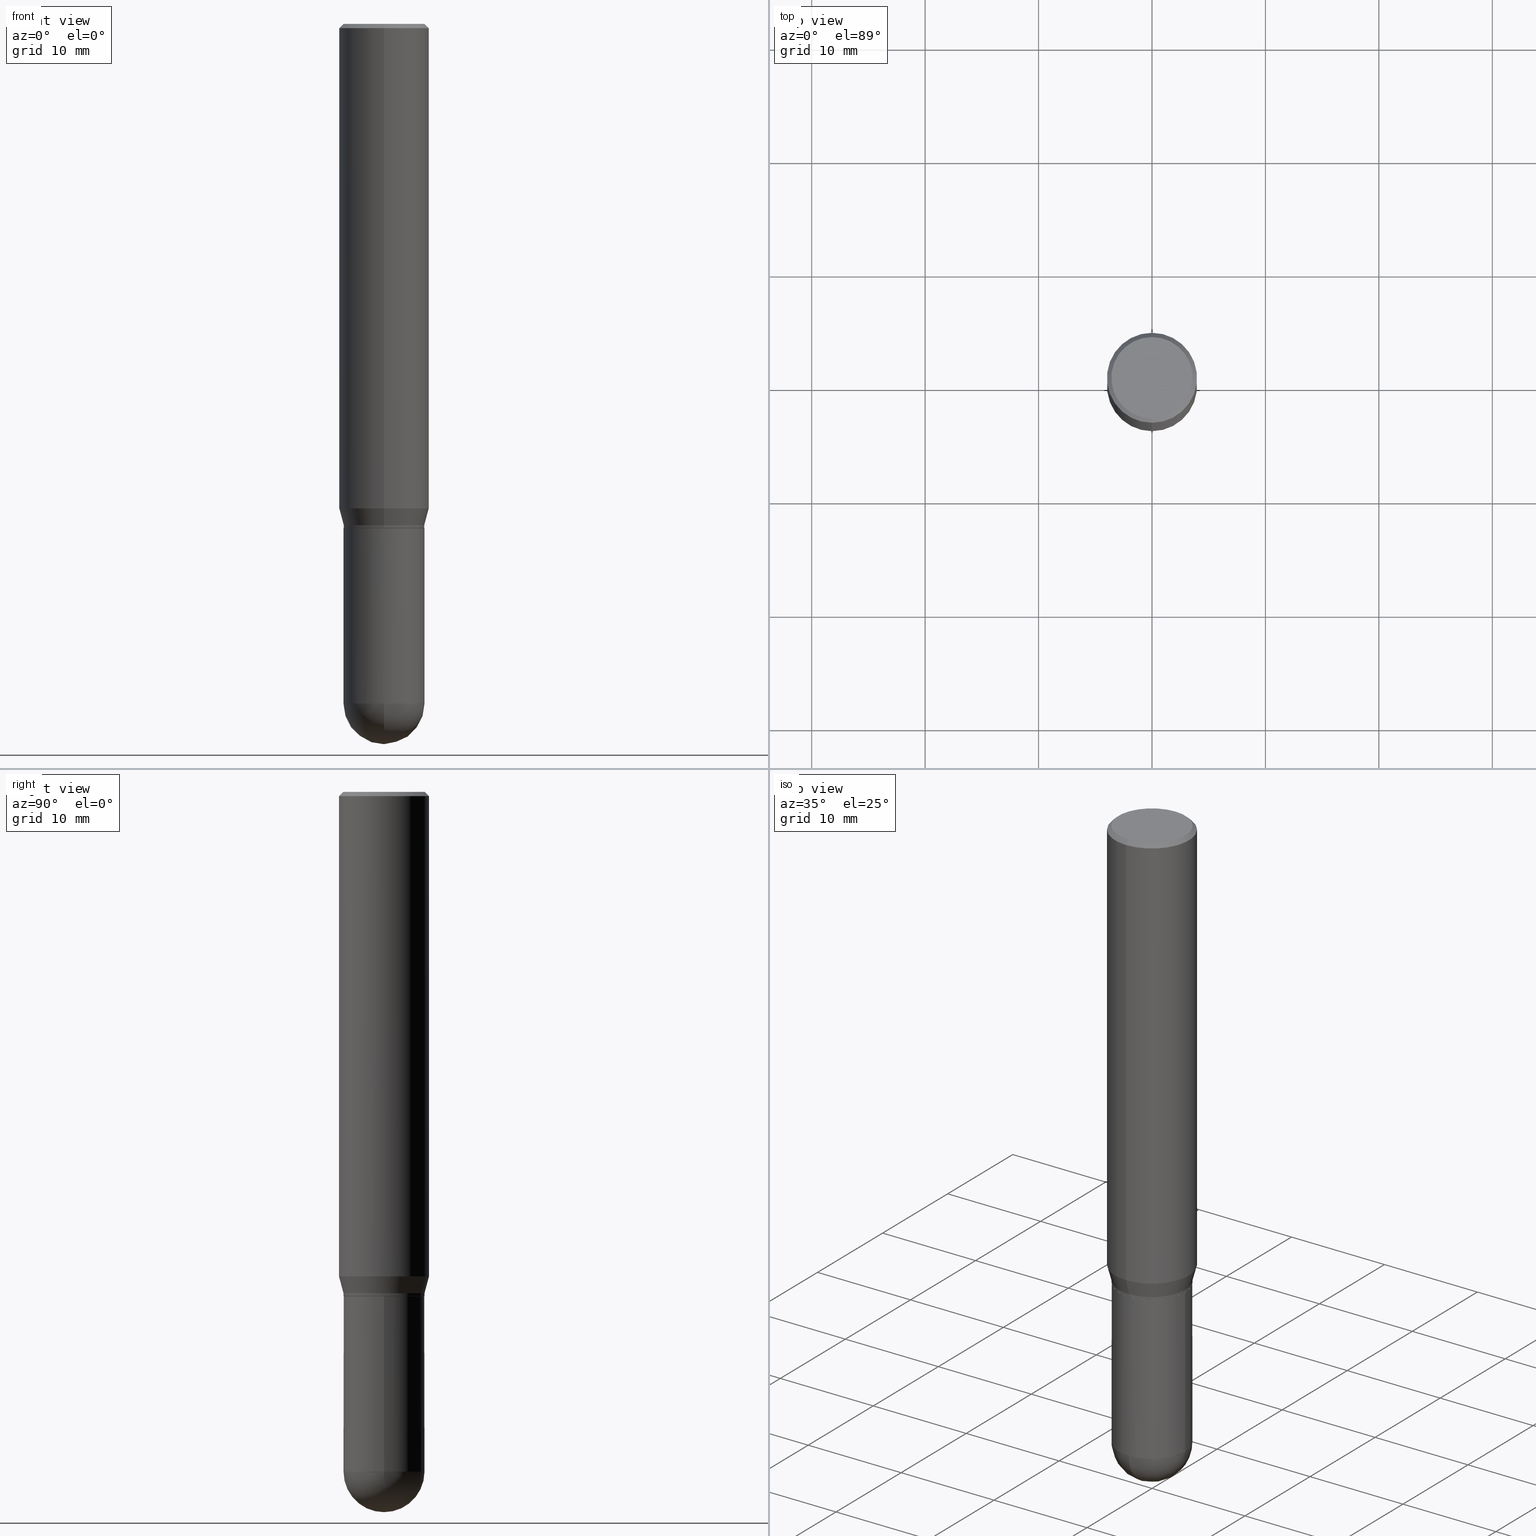
[diagram: canonical four-view strip — front | top / right | iso, engineering-drawing reading convention]
A machine part, canonical four-view strip (front | top / right | iso — engineering-drawing reading convention). The complete STEP part file that produces these views, byte-faithful:
ISO-10303-21;
HEADER;
FILE_DESCRIPTION (( 'STEP AP203' ),
    '1' );
FILE_NAME ('30488.STEP',
    '2024-03-08T15:26:23',
    ( '' ),
    ( '' ),
    'SwSTEP 2.0',
    'SolidWorks 2023',
    '' );
FILE_SCHEMA (( 'CONFIG_CONTROL_DESIGN' ));
ENDSEC;

DATA;
#1 = DIRECTION ( 'NONE',  ( -2.445560966219159716E-29, 3.491349360429001039E-15, 1.000000000000000000 ) ) ;
#2 = EDGE_LOOP ( 'NONE', ( #191, #337, #14, #367 ) ) ;
#3 = DIRECTION ( 'NONE',  ( -2.445560966219159716E-29, 3.491349360429001039E-15, 1.000000000000000000 ) ) ;
#4 = CC_DESIGN_SECURITY_CLASSIFICATION ( #479, ( #38 ) ) ;
#5 = VECTOR ( 'NONE', #414, 39.37007874015748143 ) ;
#6 = AXIS2_PLACEMENT_3D ( 'NONE', #308, #41, #476 ) ;
#7 = EDGE_CURVE ( 'NONE', #62, #73, #176, .T. ) ;
#8 = DIRECTION ( 'NONE',  ( 1.000000000000000000, -6.982962677686265133E-15, 0.000000000000000000 ) ) ;
#9 = DIRECTION ( 'NONE',  ( -2.445560966219159716E-29, 3.491349360429001039E-15, 1.000000000000000000 ) ) ;
#10 = FACE_OUTER_BOUND ( 'NONE', #330, .T. ) ;
#11 = ORIENTED_EDGE ( 'NONE', *, *, #114, .F. ) ;
#12 = CC_DESIGN_PERSON_AND_ORGANIZATION_ASSIGNMENT ( #13, #134, ( #146 ) ) ;
#13 = PERSON_AND_ORGANIZATION ( #289, #411 ) ;
#14 = ORIENTED_EDGE ( 'NONE', *, *, #162, .F. ) ;
#15 = EDGE_LOOP ( 'NONE', ( #292, #232, #96, #506 ) ) ;
#16 = APPROVAL ( #239, 'UNSPECIFIED' ) ;
#17 = CALENDAR_DATE ( 2024, 8, 3 ) ;
#18 = CONICAL_SURFACE ( 'NONE', #490, 0.1401000000000000023, 0.7853981633974653764 ) ;
#19 = ORIENTED_EDGE ( 'NONE', *, *, #376, .T. ) ;
#20 = CARTESIAN_POINT ( 'NONE',  ( -9.818045524826459157E-16, -0.1406000000000059980, -1.739999999999999547 ) ) ;
#21 = VERTEX_POINT ( 'NONE', #59 ) ;
#22 = ORIENTED_EDGE ( 'NONE', *, *, #265, .T. ) ;
#23 = CARTESIAN_POINT ( 'NONE',  ( 4.255276081221338142E-29, -6.074947887146461556E-15, -1.739999999999999991 ) ) ;
#24 = COORDINATED_UNIVERSAL_TIME_OFFSET ( 5, 0, .BEHIND. ) ;
#25 = CARTESIAN_POINT ( 'NONE',  ( 4.279731690883529924E-29, -6.109861380750751819E-15, -1.750000000000000222 ) ) ;
#26 = ADVANCED_FACE ( 'NONE', ( #278 ), #209, .T. ) ;
#27 = VECTOR ( 'NONE', #150, 39.37007874015748143 ) ;
#28 = CONICAL_SURFACE ( 'NONE', #48, 0.1562500000000000000, 0.7853981633974485010 ) ;
#29 = FACE_OUTER_BOUND ( 'NONE', #327, .T. ) ;
#30 = DIRECTION ( 'NONE',  ( -6.982962677686265922E-15, -1.000000000000000000, 3.899854380677035588E-15 ) ) ;
#31 = ORIENTED_EDGE ( 'NONE', *, *, #297, .F. ) ;
#32 = ORIENTED_EDGE ( 'NONE', *, *, #265, .F. ) ;
#33 = EDGE_LOOP ( 'NONE', ( #116, #465 ) ) ;
#34 = VERTEX_POINT ( 'NONE', #102 ) ;
#35 = CARTESIAN_POINT ( 'NONE',  ( -0.1406000000000000028, -6.174923620442310269E-15, -1.750000000000000222 ) ) ;
#36 = DIRECTION ( 'NONE',  ( -2.445560966219159716E-29, 3.491349360429001039E-15, 1.000000000000000000 ) ) ;
#37 = AXIS2_PLACEMENT_3D ( 'NONE', #49, #483, #317 ) ;
#38 = PRODUCT_DEFINITION_FORMATION_WITH_SPECIFIED_SOURCE ( 'ANY', '', #146, .NOT_KNOWN. ) ;
#39 = CARTESIAN_POINT ( 'NONE',  ( 9.954703727999429753E-16, 0.1400999999999938961, -1.750000000000000666 ) ) ;
#40 = CARTESIAN_POINT ( 'NONE',  ( 4.255276081221338142E-29, -6.074947887146461556E-15, -1.739999999999999991 ) ) ;
#41 = DIRECTION ( 'NONE',  ( -2.445560966219159716E-29, 3.491349360429001039E-15, 1.000000000000000000 ) ) ;
#42 = DIMENSIONAL_EXPONENTS ( 1.000000000000000000, 0.000000000000000000, 0.000000000000000000, 0.000000000000000000, 0.000000000000000000, 0.000000000000000000, 0.000000000000000000 ) ;
#43 = ORIENTED_EDGE ( 'NONE', *, *, #114, .T. ) ;
#44 = DIRECTION ( 'NONE',  ( -6.982962677686266711E-15, -1.000000000000000000, 3.885985766236507752E-15 ) ) ;
#45 = PLANE ( 'NONE',  #186 ) ;
#46 = CC_DESIGN_PERSON_AND_ORGANIZATION_ASSIGNMENT ( #404, #61, ( #505 ) ) ;
#47 = CARTESIAN_POINT ( 'NONE',  ( -0.1406000000000000583, -6.174923620442310269E-15, -2.359399999999999942 ) ) ;
#48 = AXIS2_PLACEMENT_3D ( 'NONE', #398, #294, #394 ) ;
#49 = CARTESIAN_POINT ( 'NONE',  ( 7.297477244033334279E-46, -1.041807702225884863E-31, -2.983968645572244653E-17 ) ) ;
#50 = EDGE_CURVE ( 'NONE', #328, #34, #249, .T. ) ;
#51 = DIRECTION ( 'NONE',  ( -6.982962677686266711E-15, -1.000000000000000000, 3.885985766236507752E-15 ) ) ;
#52 = CARTESIAN_POINT ( 'NONE',  ( 0.1406000000000000028, -9.818045524826893030E-16, 6.855904546769086274E-30 ) ) ;
#53 = ORIENTED_EDGE ( 'NONE', *, *, #282, .T. ) ;
#54 = CARTESIAN_POINT ( 'NONE',  ( 0.1406000000000000028, -7.091896895458194566E-15, -1.750000000000000222 ) ) ;
#55 = AXIS2_PLACEMENT_3D ( 'NONE', #197, #36, #347 ) ;
#56 =( GEOMETRIC_REPRESENTATION_CONTEXT ( 3 ) GLOBAL_UNCERTAINTY_ASSIGNED_CONTEXT ( ( #341 ) ) GLOBAL_UNIT_ASSIGNED_CONTEXT ( ( #471, #231, #196 ) ) REPRESENTATION_CONTEXT ( 'NONE', 'WORKASPACE' ) );
#57 = EDGE_CURVE ( 'NONE', #87, #416, #212, .T. ) ;
#58 = DATE_AND_TIME ( #485, #480 ) ;
#59 = CARTESIAN_POINT ( 'NONE',  ( 9.972467296393428329E-16, 0.1400999999999938961, -1.750000000000000666 ) ) ;
#60 = CC_DESIGN_PERSON_AND_ORGANIZATION_ASSIGNMENT ( #366, #275, ( #479 ) ) ;
#61 = PERSON_AND_ORGANIZATION_ROLE ( 'creator' ) ;
#62 = VERTEX_POINT ( 'NONE', #218 ) ;
#63 = ADVANCED_FACE ( 'NONE', ( #375 ), #107, .T. ) ;
#64 = AXIS2_PLACEMENT_3D ( 'NONE', #390, #121, #259 ) ;
#65 = APPROVAL_ROLE ( '' ) ;
#66 = VECTOR ( 'NONE', #331, 39.37007874015748143 ) ;
#67 = CARTESIAN_POINT ( 'NONE',  ( 9.990230864787428877E-16, 0.1405999999999938410, -1.740000000000000657 ) ) ;
#68 = ORIENTED_EDGE ( 'NONE', *, *, #132, .T. ) ;
#69 = ADVANCED_FACE ( 'NONE', ( #227 ), #235, .T. ) ;
#70 = ORIENTED_EDGE ( 'NONE', *, *, #376, .F. ) ;
#71 = CARTESIAN_POINT ( 'NONE',  ( 4.279570410823989044E-29, -6.110092342975505460E-15, -1.750000000000000222 ) ) ;
#72 = ORIENTED_EDGE ( 'NONE', *, *, #338, .T. ) ;
#73 = VERTEX_POINT ( 'NONE', #215 ) ;
#74 = CIRCLE ( 'NONE', #195, 0.1405999999999999195 ) ;
#75 = AXIS2_PLACEMENT_3D ( 'NONE', #432, #128, #441 ) ;
#76 = VERTEX_POINT ( 'NONE', #47 ) ;
#77 = VERTEX_POINT ( 'NONE', #382 ) ;
#78 = DIRECTION ( 'NONE',  ( 1.000000000000000000, 0.000000000000000000, 0.000000000000000000 ) ) ;
#79 = CLOSED_SHELL ( 'NONE', ( #26, #69, #88, #250, #353 ) ) ;
#80 = FACE_OUTER_BOUND ( 'NONE', #85, .T. ) ;
#81 = AXIS2_PLACEMENT_3D ( 'NONE', #258, #9, #299 ) ;
#82 = CARTESIAN_POINT ( 'NONE',  ( 1.091087918388479371E-15, 0.1562499999999999445, -0.01500000000000057711 ) ) ;
#83 = EDGE_CURVE ( 'NONE', #416, #87, #180, .T. ) ;
#84 = DIRECTION ( 'NONE',  ( -2.445560966219159716E-29, 3.491349360429001039E-15, 1.000000000000000000 ) ) ;
#85 = EDGE_LOOP ( 'NONE', ( #257, #43, #72, #304 ) ) ;
#86 = FACE_OUTER_BOUND ( 'NONE', #2, .T. ) ;
#87 = VERTEX_POINT ( 'NONE', #54 ) ;
#88 = ADVANCED_FACE ( 'NONE', ( #354 ), #159, .F. ) ;
#89 = CARTESIAN_POINT ( 'NONE',  ( -9.818045524826459157E-16, -0.1406000000000059980, -1.739999999999999547 ) ) ;
#90 = LINE ( 'NONE', #52, #274 ) ;
#91 = DIRECTION ( 'NONE',  ( -6.982962677686266711E-15, -1.000000000000000000, 3.885985766236507752E-15 ) ) ;
#92 = EDGE_CURVE ( 'NONE', #263, #391, #142, .T. ) ;
#93 = PERSON_AND_ORGANIZATION ( #289, #411 ) ;
#94 = DIRECTION ( 'NONE',  ( -6.982962677686265133E-15, -1.000000000000000000, 3.496765431890256920E-15 ) ) ;
#95 = CC_DESIGN_PERSON_AND_ORGANIZATION_ASSIGNMENT ( #138, #447, ( #38 ) ) ;
#96 = ORIENTED_EDGE ( 'NONE', *, *, #162, .T. ) ;
#97 = DATE_AND_TIME ( #500, #387 ) ;
#98 = EDGE_LOOP ( 'NONE', ( #19, #281 ) ) ;
#99 = ORIENTED_EDGE ( 'NONE', *, *, #233, .F. ) ;
#100 = EDGE_CURVE ( 'NONE', #495, #73, #430, .T. ) ;
#101 = VECTOR ( 'NONE', #435, 39.37007874015748143 ) ;
#102 = CARTESIAN_POINT ( 'NONE',  ( -9.818045524826451268E-16, -0.1406000000000059702, -1.749499999999999833 ) ) ;
#103 = APPLICATION_CONTEXT ( 'configuration controlled 3d designs of mechanical parts and assemblies' ) ;
#104 = CARTESIAN_POINT ( 'NONE',  ( -0.1406000000000000028, 9.990230864787008809E-16, -6.916022736898399140E-30 ) ) ;
#105 = ORIENTED_EDGE ( 'NONE', *, *, #478, .F. ) ;
#106 = CARTESIAN_POINT ( 'NONE',  ( 4.278508910400420923E-29, -6.108115706070538213E-15, -1.749500000000000277 ) ) ;
#107 = CONICAL_SURFACE ( 'NONE', #459, 0.1401000000000000023, 0.7853981633974653764 ) ;
#108 = ORIENTED_EDGE ( 'NONE', *, *, #129, .F. ) ;
#109 = CIRCLE ( 'NONE', #399, 0.1406000000000000860 ) ;
#110 = DIRECTION ( 'NONE',  ( 2.438088387897960049E-29, -3.491481338843145188E-15, -1.000000000000000000 ) ) ;
#111 = ORIENTED_EDGE ( 'NONE', *, *, #315, .T. ) ;
#112 = ORIENTED_EDGE ( 'NONE', *, *, #297, .T. ) ;
#113 = DIRECTION ( 'NONE',  ( 1.000000000000000000, -6.982962677686270655E-15, 0.000000000000000000 ) ) ;
#114 = EDGE_CURVE ( 'NONE', #391, #263, #74, .T. ) ;
#115 = DIRECTION ( 'NONE',  ( -1.000000000000000000, 6.982962677686265922E-15, -4.876176775795935793E-29 ) ) ;
#116 = ORIENTED_EDGE ( 'NONE', *, *, #234, .F. ) ;
#117 = DIRECTION ( 'NONE',  ( -6.982962677686265922E-15, -1.000000000000000000, 3.899854380677035588E-15 ) ) ;
#118 = AXIS2_PLACEMENT_3D ( 'NONE', #224, #378, #507 ) ;
#119 = DIRECTION ( 'NONE',  ( 6.982962677686265922E-15, 1.000000000000000000, -3.885985766236502230E-15 ) ) ;
#120 = DIRECTION ( 'NONE',  ( -2.445560966219159716E-29, 3.491349360429001039E-15, 1.000000000000000000 ) ) ;
#121 = DIRECTION ( 'NONE',  ( -2.445560966219159716E-29, 3.491349360429001039E-15, 1.000000000000000000 ) ) ;
#122 = FACE_OUTER_BOUND ( 'NONE', #33, .T. ) ;
#123 = SPHERICAL_SURFACE ( 'NONE', #205, 0.1406000000000000860 ) ;
#124 = CIRCLE ( 'NONE', #501, 0.1562500000000000000 ) ;
#125 = CIRCLE ( 'NONE', #81, 0.1562500000000000000 ) ;
#126 = DIRECTION ( 'NONE',  ( -2.445560966219159716E-29, 3.491349360429001039E-15, 1.000000000000000000 ) ) ;
#127 = CARTESIAN_POINT ( 'NONE',  ( 0.1406000000000000583, -8.155751259403701439E-15, -2.359399999999999942 ) ) ;
#128 = DIRECTION ( 'NONE',  ( -2.445468806185136597E-29, 3.491481338843145583E-15, 1.000000000000000000 ) ) ;
#129 = EDGE_CURVE ( 'NONE', #21, #230, #255, .T. ) ;
#130 = CARTESIAN_POINT ( 'NONE',  ( -1.020499077168515012E-15, -0.1412499999999999867, 4.633134107048739476E-16 ) ) ;
#131 = DIRECTION ( 'NONE',  ( -6.982962677686265922E-15, -1.000000000000000000, 3.899854380677035588E-15 ) ) ;
#132 = EDGE_CURVE ( 'NONE', #77, #339, #348, .T. ) ;
#133 = CARTESIAN_POINT ( 'NONE',  ( -9.783130711438031058E-16, -0.1401000000000061085, -1.749999999999999556 ) ) ;
#134 = PERSON_AND_ORGANIZATION_ROLE ( 'design_owner' ) ;
#135 = DIRECTION ( 'NONE',  ( -2.445560966219159716E-29, 3.491349360429001039E-15, 1.000000000000000000 ) ) ;
#136 = ORIENTED_EDGE ( 'NONE', *, *, #83, .T. ) ;
#137 = AXIS2_PLACEMENT_3D ( 'NONE', #428, #84, #466 ) ;
#138 = PERSON_AND_ORGANIZATION ( #289, #411 ) ;
#139 = DIRECTION ( 'NONE',  ( -6.982962677686265133E-15, -1.000000000000000000, 3.885985766236507752E-15 ) ) ;
#140 = ORIENTED_EDGE ( 'NONE', *, *, #129, .T. ) ;
#141 = SHAPE_DEFINITION_REPRESENTATION ( #340, #238 ) ;
#142 = CIRCLE ( 'NONE', #64, 0.1405999999999999195 ) ;
#143 = AXIS2_PLACEMENT_3D ( 'NONE', #502, #219, #30 ) ;
#144 = CALENDAR_DATE ( 2024, 8, 3 ) ;
#145 = MANIFOLD_SOLID_BREP ( 'Body-Move/Copy2[2]', #467 ) ;
#146 = PRODUCT ( '30488', '30488', '', ( #190 ) ) ;
#147 = EDGE_CURVE ( 'NONE', #283, #322, #172, .T. ) ;
#148 = ADVANCED_FACE ( 'NONE', ( #277 ), #204, .T. ) ;
#149 = AXIS2_PLACEMENT_3D ( 'NONE', #254, #422, #78 ) ;
#150 = DIRECTION ( 'NONE',  ( -4.851104656540965064E-15, -0.7071067811865501263, -0.7071067811865449082 ) ) ;
#151 = DIRECTION ( 'NONE',  ( -2.445560966219159996E-29, 3.491349360429000645E-15, 1.000000000000000000 ) ) ;
#152 = EDGE_CURVE ( 'NONE', #230, #391, #303, .T. ) ;
#153 = DIRECTION ( 'NONE',  ( -2.445468806185136597E-29, 3.491481338843145583E-15, 1.000000000000000000 ) ) ;
#154 = PLANE ( 'NONE',  #309 ) ;
#155 = ORIENTED_EDGE ( 'NONE', *, *, #92, .T. ) ;
#156 = ORIENTED_EDGE ( 'NONE', *, *, #300, .T. ) ;
#157 =( LENGTH_UNIT ( ) NAMED_UNIT ( * ) SI_UNIT ( $, .METRE. ) );
#158 = CIRCLE ( 'NONE', #75, 0.1406000000000000305 ) ;
#159 = PLANE ( 'NONE',  #355 ) ;
#160 = FACE_OUTER_BOUND ( 'NONE', #220, .T. ) ;
#161 = CYLINDRICAL_SURFACE ( 'NONE', #6, 0.1405999999999999195 ) ;
#162 = EDGE_CURVE ( 'NONE', #73, #339, #124, .T. ) ;
#163 = DIRECTION ( 'NONE',  ( -2.445560966219159996E-29, 3.491349360429000645E-15, 1.000000000000000000 ) ) ;
#164 = CIRCLE ( 'NONE', #269, 0.1406000000000000305 ) ;
#165 = EDGE_CURVE ( 'NONE', #34, #230, #410, .T. ) ;
#166 = CALENDAR_DATE ( 2024, 8, 3 ) ;
#167 = FACE_OUTER_BOUND ( 'NONE', #405, .T. ) ;
#168 = ORIENTED_EDGE ( 'NONE', *, *, #152, .F. ) ;
#169 = SECURITY_CLASSIFICATION_LEVEL ( 'unclassified' ) ;
#170 = CARTESIAN_POINT ( 'NONE',  ( 9.990230864787002893E-16, 0.1405999999999999195, -4.908837200763172852E-16 ) ) ;
#171 = ORIENTED_EDGE ( 'NONE', *, *, #363, .T. ) ;
#172 = CIRCLE ( 'NONE', #291, 0.1406000000000000860 ) ;
#173 = CIRCLE ( 'NONE', #461, 0.1562500000000000000 ) ;
#174 = DATE_AND_TIME ( #17, #389 ) ;
#175 = ORIENTED_EDGE ( 'NONE', *, *, #433, .F. ) ;
#176 = LINE ( 'NONE', #451, #437 ) ;
#177 = DIRECTION ( 'NONE',  ( -2.445468806185136597E-29, 3.491481338843145583E-15, 1.000000000000000000 ) ) ;
#178 = ORIENTED_EDGE ( 'NONE', *, *, #217, .T. ) ;
#179 = ADVANCED_FACE ( 'NONE', ( #383 ), #45, .F. ) ;
#180 = CIRCLE ( 'NONE', #301, 0.1406000000000000028 ) ;
#181 = CONICAL_SURFACE ( 'NONE', #377, 0.1405999999999999195, 0.2617993877991497964 ) ;
#182 = EDGE_LOOP ( 'NONE', ( #108, #156, #211, #417 ) ) ;
#183 = ADVANCED_FACE ( 'NONE', ( #86 ), #358, .T. ) ;
#184 = ORIENTED_EDGE ( 'NONE', *, *, #83, .F. ) ;
#185 = CARTESIAN_POINT ( 'NONE',  ( 4.279570410823989044E-29, -6.110092342975505460E-15, -1.750000000000000222 ) ) ;
#186 = AXIS2_PLACEMENT_3D ( 'NONE', #350, #472, #386 ) ;
#187 = ADVANCED_FACE ( 'NONE', ( #10 ), #161, .T. ) ;
#188 = ORIENTED_EDGE ( 'NONE', *, *, #7, .T. ) ;
#189 = APPROVAL_PERSON_ORGANIZATION ( #489, #400, #214 ) ;
#190 = MECHANICAL_CONTEXT ( 'NONE', #103, 'mechanical' ) ;
#191 = ORIENTED_EDGE ( 'NONE', *, *, #478, .T. ) ;
#192 = DIRECTION ( 'NONE',  ( 5.024295867788147587E-15, 0.7071067811865620056, 0.7071067811865330288 ) ) ;
#193 = CARTESIAN_POINT ( 'NONE',  ( 4.279731690883529924E-29, -6.109861380750751819E-15, -1.750000000000000222 ) ) ;
#194 = DIRECTION ( 'NONE',  ( -6.982962677686265133E-15, -1.000000000000000000, 3.496765431890256920E-15 ) ) ;
#195 = AXIS2_PLACEMENT_3D ( 'NONE', #295, #236, #91 ) ;
#196 =( NAMED_UNIT ( * ) SI_UNIT ( $, .STERADIAN. ) SOLID_ANGLE_UNIT ( ) );
#197 = CARTESIAN_POINT ( 'NONE',  ( 0.000000000000000000, 0.000000000000000000, 0.000000000000000000 ) ) ;
#198 = AXIS2_PLACEMENT_3D ( 'NONE', #208, #334, #380 ) ;
#199 = DIRECTION ( 'NONE',  ( 2.445560966219159716E-29, -3.491349360429001039E-15, -1.000000000000000000 ) ) ;
#200 = ADVANCED_FACE ( 'NONE', ( #122 ), #154, .F. ) ;
#201 = LINE ( 'NONE', #67, #66 ) ;
#202 = CARTESIAN_POINT ( 'NONE',  ( 3.668341449328747176E-31, -5.237024040643512307E-17, -0.01500000000000003067 ) ) ;
#203 = EDGE_CURVE ( 'NONE', #76, #322, #158, .T. ) ;
#204 = CONICAL_SURFACE ( 'NONE', #368, 0.1562500000000000000, 0.7853981633974485010 ) ;
#205 = AXIS2_PLACEMENT_3D ( 'NONE', #431, #268, #312 ) ;
#206 = CARTESIAN_POINT ( 'NONE',  ( 5.757815463287349061E-29, -8.255019604862529009E-15, -2.359399999999999942 ) ) ;
#207 = COORDINATED_UNIVERSAL_TIME_OFFSET ( 5, 0, .BEHIND. ) ;
#208 = CARTESIAN_POINT ( 'NONE',  ( 0.000000000000000000, 0.000000000000000000, 0.000000000000000000 ) ) ;
#209 = CYLINDRICAL_SURFACE ( 'NONE', #222, 0.1406000000000000028 ) ;
#210 = DIRECTION ( 'NONE',  ( -1.000000000000000000, 7.105427357601001070E-15, -4.926315508542082329E-29 ) ) ;
#211 = ORIENTED_EDGE ( 'NONE', *, *, #50, .T. ) ;
#212 = CIRCLE ( 'NONE', #260, 0.1406000000000000028 ) ;
#213 = CIRCLE ( 'NONE', #360, 0.1562500000000000000 ) ;
#214 = APPROVAL_ROLE ( '' ) ;
#215 = CARTESIAN_POINT ( 'NONE',  ( -1.091087918388478779E-15, -0.1562500000000000833, -0.01499999999999948423 ) ) ;
#216 = ORIENTED_EDGE ( 'NONE', *, *, #363, .F. ) ;
#217 = EDGE_CURVE ( 'NONE', #283, #470, #109, .T. ) ;
#218 = CARTESIAN_POINT ( 'NONE',  ( -1.091087918388437956E-15, -0.1562500000000058842, -1.681593404861546404 ) ) ;
#219 = DIRECTION ( 'NONE',  ( -2.445560966219159716E-29, 3.491349360429001039E-15, 1.000000000000000000 ) ) ;
#220 = EDGE_LOOP ( 'NONE', ( #442, #53, #188, #458 ) ) ;
#221 = EDGE_CURVE ( 'NONE', #246, #87, #90, .T. ) ;
#222 = AXIS2_PLACEMENT_3D ( 'NONE', #446, #332, #498 ) ;
#223 = CIRCLE ( 'NONE', #452, 0.1401000000000000023 ) ;
#224 = CARTESIAN_POINT ( 'NONE',  ( 0.000000000000000000, 0.000000000000000000, 0.000000000000000000 ) ) ;
#225 = EDGE_LOOP ( 'NONE', ( #371, #346, #290, #32 ) ) ;
#226 = CYLINDRICAL_SURFACE ( 'NONE', #344, 0.1562500000000000000 ) ;
#227 = FACE_OUTER_BOUND ( 'NONE', #497, .T. ) ;
#228 = EDGE_CURVE ( 'NONE', #391, #381, #201, .T. ) ;
#229 = CARTESIAN_POINT ( 'NONE',  ( 1.054623055551970126E-15, 0.1405999999999938410, -1.740000000000000657 ) ) ;
#230 = VERTEX_POINT ( 'NONE', #413 ) ;
#231 =( NAMED_UNIT ( * ) PLANE_ANGLE_UNIT ( ) SI_UNIT ( $, .RADIAN. ) );
#232 = ORIENTED_EDGE ( 'NONE', *, *, #100, .T. ) ;
#233 = EDGE_CURVE ( 'NONE', #76, #416, #374, .T. ) ;
#234 = EDGE_CURVE ( 'NONE', #328, #21, #388, .T. ) ;
#235 = SPHERICAL_SURFACE ( 'NONE', #273, 0.1406000000000000860 ) ;
#236 = DIRECTION ( 'NONE',  ( -2.445560966219159716E-29, 3.491349360429001039E-15, 1.000000000000000000 ) ) ;
#237 = APPROVAL_PERSON_ORGANIZATION ( #271, #457, #65 ) ;
#238 = ADVANCED_BREP_SHAPE_REPRESENTATION ( '30488', ( #492, #145, #149 ), #56 ) ;
#239 = APPROVAL_STATUS ( 'not_yet_approved' ) ;
#240 = CARTESIAN_POINT ( 'NONE',  ( 6.107660196449910766E-29, -8.737312614105869844E-15, -2.500000000000000000 ) ) ;
#241 = ORIENTED_EDGE ( 'NONE', *, *, #147, .F. ) ;
#242 = DATE_TIME_ROLE ( 'classification_date' ) ;
#243 = ADVANCED_FACE ( 'NONE', ( #29 ), #181, .T. ) ;
#244 = LINE ( 'NONE', #20, #101 ) ;
#245 = COORDINATED_UNIVERSAL_TIME_OFFSET ( 5, 0, .BEHIND. ) ;
#246 = VERTEX_POINT ( 'NONE', #127 ) ;
#247 = CIRCLE ( 'NONE', #285, 0.1406000000000000305 ) ;
#248 = CC_DESIGN_APPROVAL ( #400, ( #505 ) ) ;
#249 = LINE ( 'NONE', #336, #5 ) ;
#250 = ADVANCED_FACE ( 'NONE', ( #167 ), #123, .T. ) ;
#251 = ORIENTED_EDGE ( 'NONE', *, *, #338, .F. ) ;
#252 = CIRCLE ( 'NONE', #468, 0.1406000000000000305 ) ;
#253 = ORIENTED_EDGE ( 'NONE', *, *, #100, .F. ) ;
#254 = CARTESIAN_POINT ( 'NONE',  ( 0.000000000000000000, 0.000000000000000000, 0.000000000000000000 ) ) ;
#255 = LINE ( 'NONE', #39, #488 ) ;
#256 = CARTESIAN_POINT ( 'NONE',  ( 5.769839101313211634E-29, -8.237801070866517629E-15, -2.359399999999999942 ) ) ;
#257 = ORIENTED_EDGE ( 'NONE', *, *, #228, .F. ) ;
#258 = CARTESIAN_POINT ( 'NONE',  ( 3.668341449328747176E-31, -5.237024040643512307E-17, -0.01500000000000003067 ) ) ;
#259 = DIRECTION ( 'NONE',  ( -6.982962677686266711E-15, -1.000000000000000000, 3.885985766236507752E-15 ) ) ;
#260 = AXIS2_PLACEMENT_3D ( 'NONE', #71, #503, #365 ) ;
#261 = CIRCLE ( 'NONE', #137, 0.1412499999999999867 ) ;
#262 = DESIGN_CONTEXT ( 'detailed design', #288, 'design' ) ;
#263 = VERTEX_POINT ( 'NONE', #89 ) ;
#264 = CARTESIAN_POINT ( 'NONE',  ( 5.769839101313211634E-29, -8.237801070866517629E-15, -2.359399999999999942 ) ) ;
#265 = EDGE_CURVE ( 'NONE', #34, #263, #402, .T. ) ;
#266 = DIRECTION ( 'NONE',  ( -2.445560966219159716E-29, 3.491349360429001039E-15, 1.000000000000000000 ) ) ;
#267 = DIRECTION ( 'NONE',  ( -6.982962677686265922E-15, -1.000000000000000000, 3.491349360429000645E-15 ) ) ;
#268 = DIRECTION ( 'NONE',  ( -1.000000000000000000, 6.982962677686265922E-15, -4.883557194083112340E-29 ) ) ;
#269 = AXIS2_PLACEMENT_3D ( 'NONE', #256, #509, #345 ) ;
#270 = DIRECTION ( 'NONE',  ( -6.982962677686265133E-15, -1.000000000000000000, 3.496765431890256920E-15 ) ) ;
#271 = PERSON_AND_ORGANIZATION ( #289, #411 ) ;
#272 = EDGE_LOOP ( 'NONE', ( #112, #450, #460, #429, #171 ) ) ;
#273 = AXIS2_PLACEMENT_3D ( 'NONE', #396, #313, #119 ) ;
#274 = VECTOR ( 'NONE', #449, 39.37007874015748143 ) ;
#275 = PERSON_AND_ORGANIZATION_ROLE ( 'classification_officer' ) ;
#276 = EDGE_CURVE ( 'NONE', #495, #77, #356, .T. ) ;
#277 = FACE_OUTER_BOUND ( 'NONE', #15, .T. ) ;
#278 = FACE_OUTER_BOUND ( 'NONE', #272, .T. ) ;
#279 = ORIENTED_EDGE ( 'NONE', *, *, #482, .T. ) ;
#280 = DIRECTION ( 'NONE',  ( 6.982962677686266711E-15, 1.000000000000000000, 0.000000000000000000 ) ) ;
#281 = ORIENTED_EDGE ( 'NONE', *, *, #276, .T. ) ;
#282 = EDGE_CURVE ( 'NONE', #381, #62, #213, .T. ) ;
#283 = VERTEX_POINT ( 'NONE', #240 ) ;
#284 = DIRECTION ( 'NONE',  ( 4.937700262164548831E-15, 0.7071067811865452413, -0.7071067811865497932 ) ) ;
#285 = AXIS2_PLACEMENT_3D ( 'NONE', #293, #177, #307 ) ;
#286 = APPROVAL_STATUS ( 'not_yet_approved' ) ;
#287 = DIRECTION ( 'NONE',  ( -2.445560966219159716E-29, 3.491349360429001039E-15, 1.000000000000000000 ) ) ;
#288 = APPLICATION_CONTEXT ( 'configuration controlled 3d designs of mechanical parts and assemblies' ) ;
#289 = PERSON ( 'UNSPECIFIED', 'UNSPECIFIED', 'UNSPECIFIED', ('UNSPECIFIED'), ('UNSPECIFIED'), ('UNSPECIFIED') ) ;
#290 = ORIENTED_EDGE ( 'NONE', *, *, #92, .F. ) ;
#291 = AXIS2_PLACEMENT_3D ( 'NONE', #206, #210, #484 ) ;
#292 = ORIENTED_EDGE ( 'NONE', *, *, #276, .F. ) ;
#293 = CARTESIAN_POINT ( 'NONE',  ( 5.769839101313211634E-29, -8.237801070866517629E-15, -2.359399999999999942 ) ) ;
#294 = DIRECTION ( 'NONE',  ( 2.445560966219159716E-29, -3.491349360429001039E-15, -1.000000000000000000 ) ) ;
#295 = CARTESIAN_POINT ( 'NONE',  ( 4.255276081221338142E-29, -6.074947887146461556E-15, -1.739999999999999991 ) ) ;
#296 = FACE_OUTER_BOUND ( 'NONE', #182, .T. ) ;
#297 = EDGE_CURVE ( 'NONE', #470, #76, #164, .T. ) ;
#298 = DIRECTION ( 'NONE',  ( -2.445468806185136597E-29, 3.491481338843145583E-15, 1.000000000000000000 ) ) ;
#299 = DIRECTION ( 'NONE',  ( -6.982962677686265133E-15, -1.000000000000000000, 3.496765431890256920E-15 ) ) ;
#300 = EDGE_CURVE ( 'NONE', #21, #328, #223, .T. ) ;
#301 = AXIS2_PLACEMENT_3D ( 'NONE', #185, #298, #8 ) ;
#302 = AXIS2_PLACEMENT_3D ( 'NONE', #40, #3, #44 ) ;
#303 = LINE ( 'NONE', #170, #343 ) ;
#304 = ORIENTED_EDGE ( 'NONE', *, *, #282, .F. ) ;
#305 = LENGTH_MEASURE_WITH_UNIT ( LENGTH_MEASURE( 0.02539999999999999897 ), #157 );
#306 = CARTESIAN_POINT ( 'NONE',  ( 9.818045524827319015E-16, 0.1405999999999938965, -1.750000000000000666 ) ) ;
#307 = DIRECTION ( 'NONE',  ( 1.000000000000000000, -6.982962677686270655E-15, 0.000000000000000000 ) ) ;
#308 = CARTESIAN_POINT ( 'NONE',  ( 0.000000000000000000, 0.000000000000000000, 0.000000000000000000 ) ) ;
#309 = AXIS2_PLACEMENT_3D ( 'NONE', #512, #464, #267 ) ;
#310 = DIRECTION ( 'NONE',  ( 6.982962677686265133E-15, 1.000000000000000000, -3.496765431890256920E-15 ) ) ;
#311 = VECTOR ( 'NONE', #163, 39.37007874015748143 ) ;
#312 = DIRECTION ( 'NONE',  ( 6.982962677686265922E-15, 1.000000000000000000, -3.885985766236502230E-15 ) ) ;
#313 = DIRECTION ( 'NONE',  ( -1.000000000000000000, 6.982962677686265922E-15, -4.883557194083112340E-29 ) ) ;
#314 = DIRECTION ( 'NONE',  ( -2.445560966219159716E-29, 3.491349360429001039E-15, 1.000000000000000000 ) ) ;
#315 = EDGE_CURVE ( 'NONE', #230, #34, #425, .T. ) ;
#316 = PERSON_AND_ORGANIZATION ( #289, #411 ) ;
#317 = DIRECTION ( 'NONE',  ( -6.982962677686265922E-15, -1.000000000000000000, 3.491349360429000645E-15 ) ) ;
#318 = ORIENTED_EDGE ( 'NONE', *, *, #217, .F. ) ;
#319 = CC_DESIGN_DATE_AND_TIME_ASSIGNMENT ( #97, #242, ( #479 ) ) ;
#320 = APPLICATION_PROTOCOL_DEFINITION ( 'international standard', 'config_control_design', 1994, #288 ) ;
#321 = CARTESIAN_POINT ( 'NONE',  ( 5.757815463287349061E-29, -8.255019604862529009E-15, -2.359399999999999942 ) ) ;
#322 = VERTEX_POINT ( 'NONE', #329 ) ;
#323 = CARTESIAN_POINT ( 'NONE',  ( 4.279731690883529924E-29, -6.109861380750751819E-15, -1.750000000000000222 ) ) ;
#324 = CONICAL_SURFACE ( 'NONE', #302, 0.1405999999999999195, 0.2617993877991497964 ) ;
#325 = CARTESIAN_POINT ( 'NONE',  ( 4.278508910400420923E-29, -6.108115706070538213E-15, -1.749500000000000277 ) ) ;
#326 = APPROVAL_DATE_TIME ( #174, #16 ) ;
#327 = EDGE_LOOP ( 'NONE', ( #155, #448, #105, #251 ) ) ;
#328 = VERTEX_POINT ( 'NONE', #133 ) ;
#329 = CARTESIAN_POINT ( 'NONE',  ( -9.990230864786434913E-16, -0.1406000000000083017, -2.359399999999999498 ) ) ;
#330 = EDGE_LOOP ( 'NONE', ( #168, #111, #22, #11 ) ) ;
#331 = DIRECTION ( 'NONE',  ( 1.839019923739597160E-15, 0.2588190451025245142, 0.9659258262890673130 ) ) ;
#332 = DIRECTION ( 'NONE',  ( -2.445468806185136597E-29, 3.491481338843145583E-15, 1.000000000000000000 ) ) ;
#333 = COORDINATED_UNIVERSAL_TIME_OFFSET ( 5, 0, .BEHIND. ) ;
#334 = DIRECTION ( 'NONE',  ( -2.445560966219159716E-29, 3.491349360429001039E-15, 1.000000000000000000 ) ) ;
#335 = DIRECTION ( 'NONE',  ( -2.445468806185136877E-29, 3.491481338843145188E-15, 1.000000000000000000 ) ) ;
#336 = CARTESIAN_POINT ( 'NONE',  ( -9.783130711438031058E-16, -0.1401000000000061085, -1.749999999999999556 ) ) ;
#337 = ORIENTED_EDGE ( 'NONE', *, *, #423, .T. ) ;
#338 = EDGE_CURVE ( 'NONE', #263, #62, #244, .T. ) ;
#339 = VERTEX_POINT ( 'NONE', #499 ) ;
#340 = PRODUCT_DEFINITION_SHAPE ( 'NONE', 'NONE',  #505 ) ;
#341 = UNCERTAINTY_MEASURE_WITH_UNIT (LENGTH_MEASURE( 1.000000000000000082E-05 ), #471, 'distance_accuracy_value', 'NONE');
#342 = ORIENTED_EDGE ( 'NONE', *, *, #165, .F. ) ;
#343 = VECTOR ( 'NONE', #369, 39.37007874015748143 ) ;
#344 = AXIS2_PLACEMENT_3D ( 'NONE', #424, #266, #349 ) ;
#345 = DIRECTION ( 'NONE',  ( 1.000000000000000000, -6.982962677686270655E-15, 0.000000000000000000 ) ) ;
#346 = ORIENTED_EDGE ( 'NONE', *, *, #152, .T. ) ;
#347 = DIRECTION ( 'NONE',  ( -6.982962677686265133E-15, -1.000000000000000000, 3.491349360429001039E-15 ) ) ;
#348 = LINE ( 'NONE', #82, #395 ) ;
#349 = DIRECTION ( 'NONE',  ( -6.982962677686265133E-15, -1.000000000000000000, 3.491349360429001039E-15 ) ) ;
#350 = CARTESIAN_POINT ( 'NONE',  ( 9.863434782231850151E-16, 0.1412499999999999867, -5.080729403884576451E-16 ) ) ;
#351 = ADVANCED_FACE ( 'NONE', ( #454 ), #415, .T. ) ;
#352 = CYLINDRICAL_SURFACE ( 'NONE', #118, 0.1406000000000000028 ) ;
#353 = ADVANCED_FACE ( 'NONE', ( #359 ), #352, .T. ) ;
#354 = FACE_OUTER_BOUND ( 'NONE', #393, .T. ) ;
#355 = AXIS2_PLACEMENT_3D ( 'NONE', #306, #110, #115 ) ;
#356 = CIRCLE ( 'NONE', #37, 0.1412499999999999867 ) ;
#357 = CC_DESIGN_DATE_AND_TIME_ASSIGNMENT ( #58, #407, ( #505 ) ) ;
#358 = CYLINDRICAL_SURFACE ( 'NONE', #55, 0.1562500000000000000 ) ;
#359 = FACE_OUTER_BOUND ( 'NONE', #406, .T. ) ;
#360 = AXIS2_PLACEMENT_3D ( 'NONE', #486, #135, #94 ) ;
#361 = CC_DESIGN_APPROVAL ( #457, ( #38 ) ) ;
#362 = APPLICATION_PROTOCOL_DEFINITION ( 'international standard', 'config_control_design', 1994, #103 ) ;
#363 = EDGE_CURVE ( 'NONE', #246, #470, #247, .T. ) ;
#364 = PERSON_AND_ORGANIZATION_ROLE ( 'creator' ) ;
#365 = DIRECTION ( 'NONE',  ( 1.000000000000000000, -6.982962677686265133E-15, 0.000000000000000000 ) ) ;
#366 = PERSON_AND_ORGANIZATION ( #289, #411 ) ;
#367 = ORIENTED_EDGE ( 'NONE', *, *, #7, .F. ) ;
#368 = AXIS2_PLACEMENT_3D ( 'NONE', #477, #199, #310 ) ;
#369 = DIRECTION ( 'NONE',  ( -2.445560966219159996E-29, 3.491349360429000645E-15, 1.000000000000000000 ) ) ;
#370 = ADVANCED_FACE ( 'NONE', ( #160 ), #226, .T. ) ;
#371 = ORIENTED_EDGE ( 'NONE', *, *, #165, .T. ) ;
#372 = APPROVAL_STATUS ( 'not_yet_approved' ) ;
#373 = DIRECTION ( 'NONE',  ( -2.445560966219159716E-29, 3.491349360429001039E-15, 1.000000000000000000 ) ) ;
#374 = LINE ( 'NONE', #104, #439 ) ;
#375 = FACE_OUTER_BOUND ( 'NONE', #510, .T. ) ;
#376 = EDGE_CURVE ( 'NONE', #77, #495, #261, .T. ) ;
#377 = AXIS2_PLACEMENT_3D ( 'NONE', #23, #474, #51 ) ;
#378 = DIRECTION ( 'NONE',  ( -2.445468806185136597E-29, 3.491481338843145583E-15, 1.000000000000000000 ) ) ;
#379 = ADVANCED_FACE ( 'NONE', ( #296 ), #18, .T. ) ;
#380 = DIRECTION ( 'NONE',  ( -6.982962677686266711E-15, -1.000000000000000000, 3.491349360429001039E-15 ) ) ;
#381 = VERTEX_POINT ( 'NONE', #385 ) ;
#382 = CARTESIAN_POINT ( 'NONE',  ( 1.038715698305832292E-15, 0.1412499999999999867, -5.229927836163188776E-16 ) ) ;
#383 = FACE_OUTER_BOUND ( 'NONE', #98, .T. ) ;
#384 = ORIENTED_EDGE ( 'NONE', *, *, #147, .T. ) ;
#385 = CARTESIAN_POINT ( 'NONE',  ( 1.110223024625197561E-15, 0.1562499999999941436, -1.681593404861547514 ) ) ;
#386 = DIRECTION ( 'NONE',  ( 6.982962677686265922E-15, 1.000000000000000000, -3.491349360429000645E-15 ) ) ;
#387 = LOCAL_TIME ( 10, 26, 23.00000000000000000, #443 ) ;
#388 = CIRCLE ( 'NONE', #143, 0.1401000000000000023 ) ;
#389 = LOCAL_TIME ( 10, 26, 23.00000000000000000, #24 ) ;
#390 = CARTESIAN_POINT ( 'NONE',  ( 4.255276081221338142E-29, -6.074947887146461556E-15, -1.739999999999999991 ) ) ;
#391 = VERTEX_POINT ( 'NONE', #229 ) ;
#392 = FACE_OUTER_BOUND ( 'NONE', #487, .T. ) ;
#393 = EDGE_LOOP ( 'NONE', ( #427, #136 ) ) ;
#394 = DIRECTION ( 'NONE',  ( 6.982962677686265133E-15, 1.000000000000000000, -3.496765431890256920E-15 ) ) ;
#395 = VECTOR ( 'NONE', #284, 39.37007874015748143 ) ;
#396 = CARTESIAN_POINT ( 'NONE',  ( 5.757815463287349061E-29, -8.255019604862529009E-15, -2.359399999999999942 ) ) ;
#397 = CC_DESIGN_APPROVAL ( #16, ( #479 ) ) ;
#398 = CARTESIAN_POINT ( 'NONE',  ( 3.668341449328747176E-31, -5.237024040643512307E-17, -0.01500000000000003067 ) ) ;
#399 = AXIS2_PLACEMENT_3D ( 'NONE', #321, #445, #280 ) ;
#400 = APPROVAL ( #286, 'UNSPECIFIED' ) ;
#401 = APPROVAL_ROLE ( '' ) ;
#402 = LINE ( 'NONE', #440, #311 ) ;
#403 = ORIENTED_EDGE ( 'NONE', *, *, #234, .T. ) ;
#404 = PERSON_AND_ORGANIZATION ( #289, #411 ) ;
#405 = EDGE_LOOP ( 'NONE', ( #241, #178, #216, #175 ) ) ;
#406 = EDGE_LOOP ( 'NONE', ( #99, #508, #444, #456, #184 ) ) ;
#407 = DATE_TIME_ROLE ( 'creation_date' ) ;
#408 = AXIS2_PLACEMENT_3D ( 'NONE', #106, #373, #418 ) ;
#409 = DIRECTION ( 'NONE',  ( -2.445560966219159996E-29, 3.491349360429000645E-15, 1.000000000000000000 ) ) ;
#410 = CIRCLE ( 'NONE', #408, 0.1405999999999999195 ) ;
#411 = ORGANIZATION ( 'UNSPECIFIED', 'UNSPECIFIED', '' ) ;
#412 = APPROVAL_DATE_TIME ( #496, #400 ) ;
#413 = CARTESIAN_POINT ( 'NONE',  ( 9.990230864787432822E-16, 0.1405999999999938410, -1.749500000000000721 ) ) ;
#414 = DIRECTION ( 'NONE',  ( -4.937700262164631661E-15, -0.7071067811865571207, 0.7071067811865379138 ) ) ;
#415 = CYLINDRICAL_SURFACE ( 'NONE', #198, 0.1405999999999999195 ) ;
#416 = VERTEX_POINT ( 'NONE', #35 ) ;
#417 = ORIENTED_EDGE ( 'NONE', *, *, #315, .F. ) ;
#418 = DIRECTION ( 'NONE',  ( -6.982962677686265133E-15, -1.000000000000000000, 3.885985766236507752E-15 ) ) ;
#419 = CC_DESIGN_PERSON_AND_ORGANIZATION_ASSIGNMENT ( #316, #364, ( #38 ) ) ;
#420 = VECTOR ( 'NONE', #151, 39.37007874015748143 ) ;
#421 = ORIENTED_EDGE ( 'NONE', *, *, #203, .F. ) ;
#422 = DIRECTION ( 'NONE',  ( 0.000000000000000000, 0.000000000000000000, 1.000000000000000000 ) ) ;
#423 = EDGE_CURVE ( 'NONE', #381, #339, #511, .T. ) ;
#424 = CARTESIAN_POINT ( 'NONE',  ( 0.000000000000000000, 0.000000000000000000, 0.000000000000000000 ) ) ;
#425 = CIRCLE ( 'NONE', #504, 0.1405999999999999195 ) ;
#426 = CARTESIAN_POINT ( 'NONE',  ( -1.071952812151801215E-15, -0.1562500000000000833, -0.01499999999999948423 ) ) ;
#427 = ORIENTED_EDGE ( 'NONE', *, *, #57, .T. ) ;
#428 = CARTESIAN_POINT ( 'NONE',  ( 7.297477244033334279E-46, -1.041807702225884863E-31, -2.983968645572244653E-17 ) ) ;
#429 = ORIENTED_EDGE ( 'NONE', *, *, #221, .F. ) ;
#430 = LINE ( 'NONE', #426, #27 ) ;
#431 = CARTESIAN_POINT ( 'NONE',  ( 5.757815463287349061E-29, -8.255019604862529009E-15, -2.359399999999999942 ) ) ;
#432 = CARTESIAN_POINT ( 'NONE',  ( 5.769839101313211634E-29, -8.237801070866517629E-15, -2.359399999999999942 ) ) ;
#433 = EDGE_CURVE ( 'NONE', #322, #246, #252, .T. ) ;
#434 = APPROVAL_PERSON_ORGANIZATION ( #93, #16, #401 ) ;
#435 = DIRECTION ( 'NONE',  ( -1.807323732225326984E-15, -0.2588190451025177419, 0.9659258262890690894 ) ) ;
#436 = ADVANCED_FACE ( 'NONE', ( #392 ), #28, .T. ) ;
#437 = VECTOR ( 'NONE', #409, 39.37007874015748143 ) ;
#438 = APPROVAL_DATE_TIME ( #455, #457 ) ;
#439 = VECTOR ( 'NONE', #335, 39.37007874015748143 ) ;
#440 = CARTESIAN_POINT ( 'NONE',  ( -9.818045524826885142E-16, -0.1405999999999999195, 4.908837200763172852E-16 ) ) ;
#441 = DIRECTION ( 'NONE',  ( 1.000000000000000000, -6.982962677686270655E-15, 0.000000000000000000 ) ) ;
#442 = ORIENTED_EDGE ( 'NONE', *, *, #423, .F. ) ;
#443 = COORDINATED_UNIVERSAL_TIME_OFFSET ( 5, 0, .BEHIND. ) ;
#444 = ORIENTED_EDGE ( 'NONE', *, *, #433, .T. ) ;
#445 = DIRECTION ( 'NONE',  ( 1.000000000000000000, -6.982962677686265922E-15, 4.883557194083112340E-29 ) ) ;
#446 = CARTESIAN_POINT ( 'NONE',  ( 0.000000000000000000, 0.000000000000000000, 0.000000000000000000 ) ) ;
#447 = PERSON_AND_ORGANIZATION_ROLE ( 'design_supplier' ) ;
#448 = ORIENTED_EDGE ( 'NONE', *, *, #228, .T. ) ;
#449 = DIRECTION ( 'NONE',  ( -2.445468806185136877E-29, 3.491481338843145188E-15, 1.000000000000000000 ) ) ;
#450 = ORIENTED_EDGE ( 'NONE', *, *, #233, .T. ) ;
#451 = CARTESIAN_POINT ( 'NONE',  ( -1.091087918388478976E-15, -0.1562500000000000000, 5.455233375670314124E-16 ) ) ;
#452 = AXIS2_PLACEMENT_3D ( 'NONE', #323, #314, #131 ) ;
#453 = LOCAL_TIME ( 10, 26, 23.00000000000000000, #207 ) ;
#454 = FACE_OUTER_BOUND ( 'NONE', #225, .T. ) ;
#455 = DATE_AND_TIME ( #144, #453 ) ;
#456 = ORIENTED_EDGE ( 'NONE', *, *, #221, .T. ) ;
#457 = APPROVAL ( #372, 'UNSPECIFIED' ) ;
#458 = ORIENTED_EDGE ( 'NONE', *, *, #482, .F. ) ;
#459 = AXIS2_PLACEMENT_3D ( 'NONE', #25, #287, #473 ) ;
#460 = ORIENTED_EDGE ( 'NONE', *, *, #57, .F. ) ;
#461 = AXIS2_PLACEMENT_3D ( 'NONE', #475, #1, #194 ) ;
#462 = CARTESIAN_POINT ( 'NONE',  ( 9.818045524827470871E-16, 0.1405999999999918426, -2.359400000000000386 ) ) ;
#463 = CARTESIAN_POINT ( 'NONE',  ( 1.110223024625156343E-15, 0.1562500000000000000, -5.455233375670314124E-16 ) ) ;
#464 = DIRECTION ( 'NONE',  ( -2.445560966219159716E-29, 3.491349360429000645E-15, 1.000000000000000000 ) ) ;
#465 = ORIENTED_EDGE ( 'NONE', *, *, #300, .F. ) ;
#466 = DIRECTION ( 'NONE',  ( -6.982962677686265922E-15, -1.000000000000000000, 3.491349360429000645E-15 ) ) ;
#467 = CLOSED_SHELL ( 'NONE', ( #351, #63, #148, #183, #243, #469, #370, #436, #179, #200, #379, #187 ) ) ;
#468 = AXIS2_PLACEMENT_3D ( 'NONE', #264, #153, #113 ) ;
#469 = ADVANCED_FACE ( 'NONE', ( #80 ), #324, .T. ) ;
#470 = VERTEX_POINT ( 'NONE', #462 ) ;
#471 =( CONVERSION_BASED_UNIT ( 'INCH', #305 ) LENGTH_UNIT ( ) NAMED_UNIT ( #42 ) );
#472 = DIRECTION ( 'NONE',  ( 2.445560966219159716E-29, -3.491349360429000645E-15, -1.000000000000000000 ) ) ;
#473 = DIRECTION ( 'NONE',  ( -6.982962677686265922E-15, -1.000000000000000000, 3.899854380677035588E-15 ) ) ;
#474 = DIRECTION ( 'NONE',  ( -2.445560966219159716E-29, 3.491349360429001039E-15, 1.000000000000000000 ) ) ;
#475 = CARTESIAN_POINT ( 'NONE',  ( 4.112439191980971805E-29, -5.871030058564987327E-15, -1.681593404861546848 ) ) ;
#476 = DIRECTION ( 'NONE',  ( -6.982962677686266711E-15, -1.000000000000000000, 3.491349360429001039E-15 ) ) ;
#477 = CARTESIAN_POINT ( 'NONE',  ( 3.668341449328747176E-31, -5.237024040643512307E-17, -0.01500000000000003067 ) ) ;
#478 = EDGE_CURVE ( 'NONE', #62, #381, #173, .T. ) ;
#479 = SECURITY_CLASSIFICATION ( '', '', #169 ) ;
#480 = LOCAL_TIME ( 10, 26, 23.00000000000000000, #333 ) ;
#481 = LOCAL_TIME ( 10, 26, 23.00000000000000000, #245 ) ;
#482 = EDGE_CURVE ( 'NONE', #339, #73, #125, .T. ) ;
#483 = DIRECTION ( 'NONE',  ( -2.445560966219159716E-29, 3.491349360429001039E-15, 1.000000000000000000 ) ) ;
#484 = DIRECTION ( 'NONE',  ( -7.105427357601001859E-15, -1.000000000000000000, 0.000000000000000000 ) ) ;
#485 = CALENDAR_DATE ( 2024, 8, 3 ) ;
#486 = CARTESIAN_POINT ( 'NONE',  ( 4.112439191980971805E-29, -5.871030058564987327E-15, -1.681593404861546848 ) ) ;
#487 = EDGE_LOOP ( 'NONE', ( #253, #70, #68, #279 ) ) ;
#488 = VECTOR ( 'NONE', #192, 39.37007874015748143 ) ;
#489 = PERSON_AND_ORGANIZATION ( #289, #411 ) ;
#490 = AXIS2_PLACEMENT_3D ( 'NONE', #193, #120, #117 ) ;
#491 = ORIENTED_EDGE ( 'NONE', *, *, #50, .F. ) ;
#492 = MANIFOLD_SOLID_BREP ( 'Body-Move/Copy2[1]', #79 ) ;
#493 = DIRECTION ( 'NONE',  ( -2.445560966219159716E-29, 3.491349360429001039E-15, 1.000000000000000000 ) ) ;
#494 = PRODUCT_RELATED_PRODUCT_CATEGORY ( 'detail', '', ( #146 ) ) ;
#495 = VERTEX_POINT ( 'NONE', #130 ) ;
#496 = DATE_AND_TIME ( #166, #481 ) ;
#497 = EDGE_LOOP ( 'NONE', ( #318, #384, #421, #31 ) ) ;
#498 = DIRECTION ( 'NONE',  ( 1.000000000000000000, -6.982962677686268288E-15, 4.876176775795936353E-29 ) ) ;
#499 = CARTESIAN_POINT ( 'NONE',  ( 1.110223024625197561E-15, 0.1562499999999999445, -0.01500000000000057711 ) ) ;
#500 = CALENDAR_DATE ( 2024, 8, 3 ) ;
#501 = AXIS2_PLACEMENT_3D ( 'NONE', #202, #126, #270 ) ;
#502 = CARTESIAN_POINT ( 'NONE',  ( 4.279731690883529924E-29, -6.109861380750751819E-15, -1.750000000000000222 ) ) ;
#503 = DIRECTION ( 'NONE',  ( -2.445468806185136597E-29, 3.491481338843145583E-15, 1.000000000000000000 ) ) ;
#504 = AXIS2_PLACEMENT_3D ( 'NONE', #325, #493, #139 ) ;
#505 = PRODUCT_DEFINITION ( 'UNKNOWN', '', #38, #262 ) ;
#506 = ORIENTED_EDGE ( 'NONE', *, *, #132, .F. ) ;
#507 = DIRECTION ( 'NONE',  ( 1.000000000000000000, -6.982962677686268288E-15, 4.876176775795936353E-29 ) ) ;
#508 = ORIENTED_EDGE ( 'NONE', *, *, #203, .T. ) ;
#509 = DIRECTION ( 'NONE',  ( -2.445468806185136597E-29, 3.491481338843145583E-15, 1.000000000000000000 ) ) ;
#510 = EDGE_LOOP ( 'NONE', ( #403, #140, #342, #491 ) ) ;
#511 = LINE ( 'NONE', #463, #420 ) ;
#512 = CARTESIAN_POINT ( 'NONE',  ( 4.279731690883529924E-29, -6.109861380750751819E-15, -1.750000000000000222 ) ) ;
ENDSEC;
END-ISO-10303-21;
